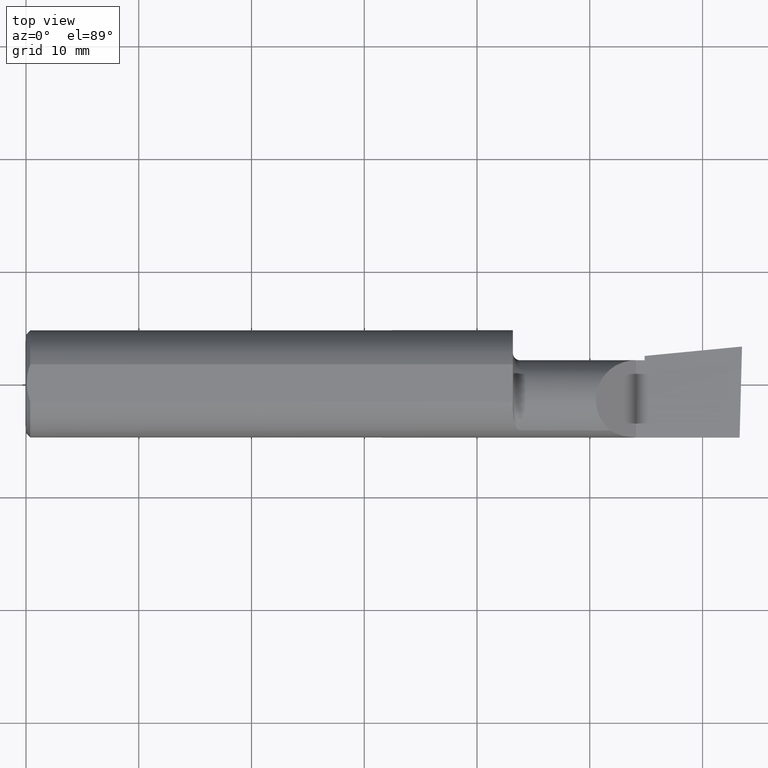
[diagram: clean part render]
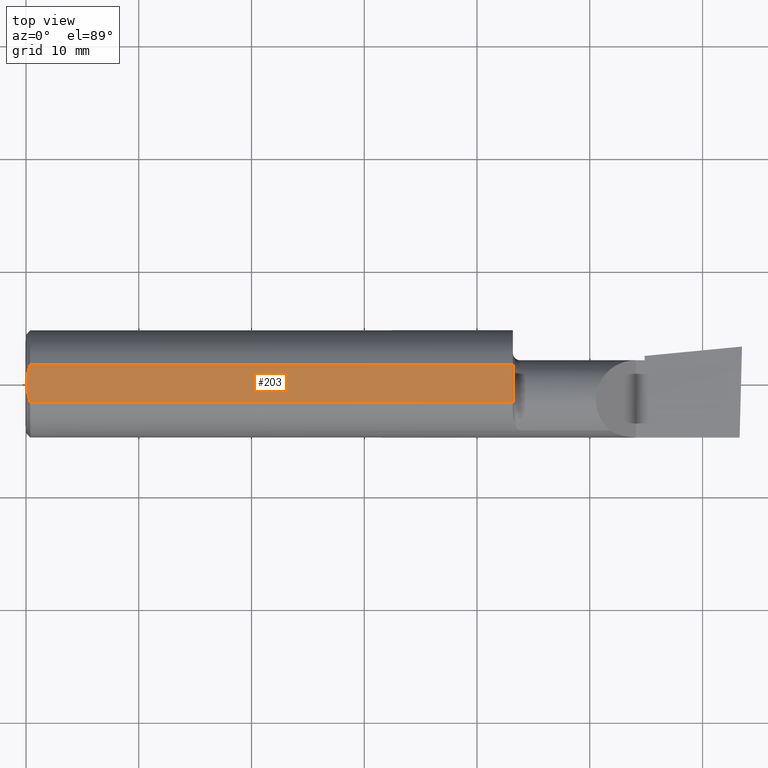
[diagram: same view with one face highlighted and labeled with its STEP entity id]
A machine part, top view. The second image highlights one B-rep face of the part: STEP entity #203.
In plain terms, the highlighted planar face has unit normal (0, -0, -1).
Its self-contained STEP definition (entity closure, byte-faithful):
#10 = CARTESIAN_POINT ( 'NONE',  ( 0.004093196532652216939, -0.02240707710020816909, 0.1753499999999999504 ) ) ;
#43 = VECTOR ( 'NONE', #286, 39.37007874015748143 ) ;
#50 = CARTESIAN_POINT ( 'NONE',  ( 0.003000000000000218638, 2.334609556160449697E-17, 0.1753499999999999781 ) ) ;
#51 = EDGE_CURVE ( 'NONE', #80, #325, #625, .T. ) ;
#56 = CARTESIAN_POINT ( 'NONE',  ( 0.01125230581755086272, 0.05532998191409922023, 0.1753500000000000059 ) ) ;
#60 = DIRECTION ( 'NONE',  ( 0.000000000000000000, -1.438723400918613551E-16, -1.000000000000000000 ) ) ;
#73 = CARTESIAN_POINT ( 'NONE',  ( 0.01499999999999999424, 0.06597272163553663527, 0.1753499999999999781 ) ) ;
#80 = VERTEX_POINT ( 'NONE', #73 ) ;
#93 = EDGE_CURVE ( 'NONE', #448, #420, #514, .T. ) ;
#110 = CARTESIAN_POINT ( 'NONE',  ( 2.500000000000000000, 0.2373500000000000332, 0.1753499999999999504 ) ) ;
#112 = CARTESIAN_POINT ( 'NONE',  ( 0.003000000000000169632, 0.01127363201155560934, 0.1753499999999999781 ) ) ;
#124 = B_SPLINE_CURVE_WITH_KNOTS ( 'NONE', 3,
 ( #582, #440, #302, #10, #547, #541 ),
 .UNSPECIFIED., .F., .F.,
 ( 4, 2, 4 ),
 ( 0.001779942938356815062, 0.002629978419973711019, 0.003480013901590607410 ),
 .UNSPECIFIED. ) ;
#144 = CARTESIAN_POINT ( 'NONE',  ( 1.699999999999999956, -0.06597272163553659363, 0.1753499999999999781 ) ) ;
#156 = CARTESIAN_POINT ( 'NONE',  ( 0.003000000000000218638, 2.334609556160449697E-17, 0.1753499999999999781 ) ) ;
#157 = DIRECTION ( 'NONE',  ( 0.000000000000000000, 1.000000000000000000, -1.438723400918613551E-16 ) ) ;
#159 = VECTOR ( 'NONE', #247, 39.37007874015748143 ) ;
#164 = CARTESIAN_POINT ( 'NONE',  ( 0.01499999999999997863, -0.06597272163553657975, 0.1753499999999999781 ) ) ;
#195 = VERTEX_POINT ( 'NONE', #50 ) ;
#203 = ADVANCED_FACE ( 'NONE', ( #445 ), #540, .F. ) ;
#209 = EDGE_CURVE ( 'NONE', #325, #448, #542, .T. ) ;
#243 = CARTESIAN_POINT ( 'NONE',  ( 1.699999999999999956, 0.2373500000000000332, 0.1753499999999999504 ) ) ;
#247 = DIRECTION ( 'NONE',  ( 6.829619984160658046E-18, -1.000000000000000000, 1.438723400918613551E-16 ) ) ;
#272 = ORIENTED_EDGE ( 'NONE', *, *, #51, .F. ) ;
#276 = AXIS2_PLACEMENT_3D ( 'NONE', #110, #60, #157 ) ;
#286 = DIRECTION ( 'NONE',  ( -1.000000000000000000, -0.000000000000000000, -0.000000000000000000 ) ) ;
#301 = ORIENTED_EDGE ( 'NONE', *, *, #209, .F. ) ;
#302 = CARTESIAN_POINT ( 'NONE',  ( 0.008227791779583789808, -0.04447712204611815878, 0.1753499999999999781 ) ) ;
#325 = VERTEX_POINT ( 'NONE', #603 ) ;
#370 = DIRECTION ( 'NONE',  ( 1.000000000000000000, 0.000000000000000000, 0.000000000000000000 ) ) ;
#420 = VERTEX_POINT ( 'NONE', #164 ) ;
#426 = ORIENTED_EDGE ( 'NONE', *, *, #93, .F. ) ;
#429 = ORIENTED_EDGE ( 'NONE', *, *, #573, .F. ) ;
#433 = CARTESIAN_POINT ( 'NONE',  ( 0.004115035183746292881, 0.02255629470626744487, 0.1753499999999999781 ) ) ;
#440 = CARTESIAN_POINT ( 'NONE',  ( 0.01128414053810044941, -0.05542038647445821781, 0.1753499999999999781 ) ) ;
#445 = FACE_OUTER_BOUND ( 'NONE', #561, .T. ) ;
#448 = VERTEX_POINT ( 'NONE', #144 ) ;
#479 = CARTESIAN_POINT ( 'NONE',  ( 0.000000000000000000, -0.06597272163553657975, 0.1753499999999999781 ) ) ;
#486 = B_SPLINE_CURVE_WITH_KNOTS ( 'NONE', 3,
 ( #156, #112, #433, #491, #56, #628 ),
 .UNSPECIFIED., .F., .F.,
 ( 4, 2, 4 ),
 ( 0.003480013901590607410, 0.004330767971208083697, 0.005181522040825559984 ),
 .UNSPECIFIED. ) ;
#491 = CARTESIAN_POINT ( 'NONE',  ( 0.008244775919947424855, 0.04453482769755855164, 0.1753499999999999504 ) ) ;
#514 = LINE ( 'NONE', #479, #43 ) ;
#540 = PLANE ( 'NONE',  #276 ) ;
#541 = CARTESIAN_POINT ( 'NONE',  ( 0.003000000000000218638, 2.334609556160449697E-17, 0.1753499999999999781 ) ) ;
#542 = LINE ( 'NONE', #243, #159 ) ;
#547 = CARTESIAN_POINT ( 'NONE',  ( 0.003000000000000172667, -0.01126410975715121283, 0.1753500000000000059 ) ) ;
#561 = EDGE_LOOP ( 'NONE', ( #301, #272, #611, #429, #426 ) ) ;
#564 = VECTOR ( 'NONE', #370, 39.37007874015748143 ) ;
#565 = CARTESIAN_POINT ( 'NONE',  ( 0.000000000000000000, 0.06597272163553663527, 0.1753499999999999781 ) ) ;
#573 = EDGE_CURVE ( 'NONE', #420, #195, #124, .T. ) ;
#582 = CARTESIAN_POINT ( 'NONE',  ( 0.01499999999999997863, -0.06597272163553657975, 0.1753499999999999781 ) ) ;
#603 = CARTESIAN_POINT ( 'NONE',  ( 1.699999999999999956, 0.06597272163553663527, 0.1753499999999999781 ) ) ;
#611 = ORIENTED_EDGE ( 'NONE', *, *, #616, .F. ) ;
#616 = EDGE_CURVE ( 'NONE', #195, #80, #486, .T. ) ;
#625 = LINE ( 'NONE', #565, #564 ) ;
#628 = CARTESIAN_POINT ( 'NONE',  ( 0.01499999999999999424, 0.06597272163553663527, 0.1753499999999999781 ) ) ;